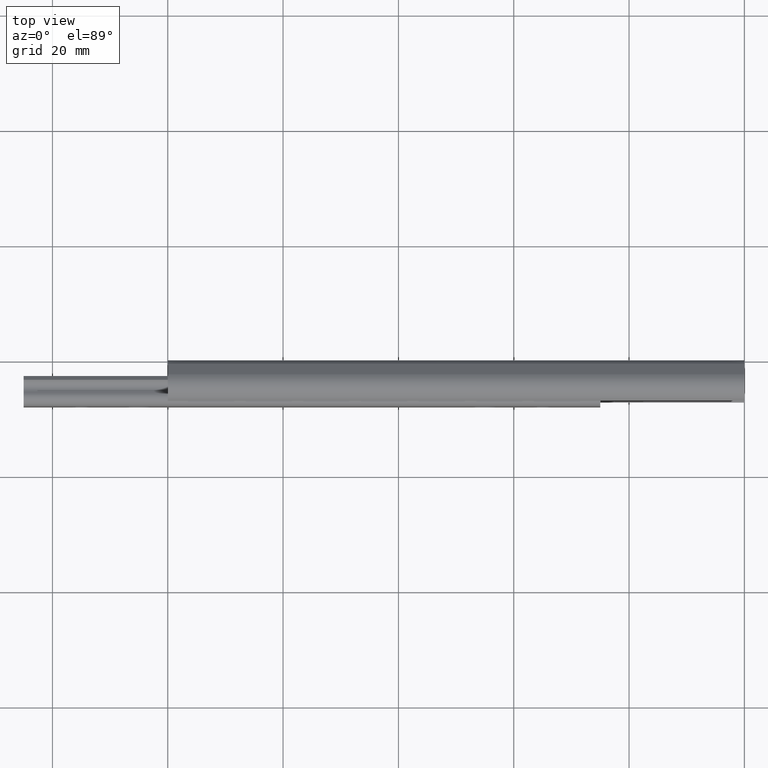
[diagram: clean part render]
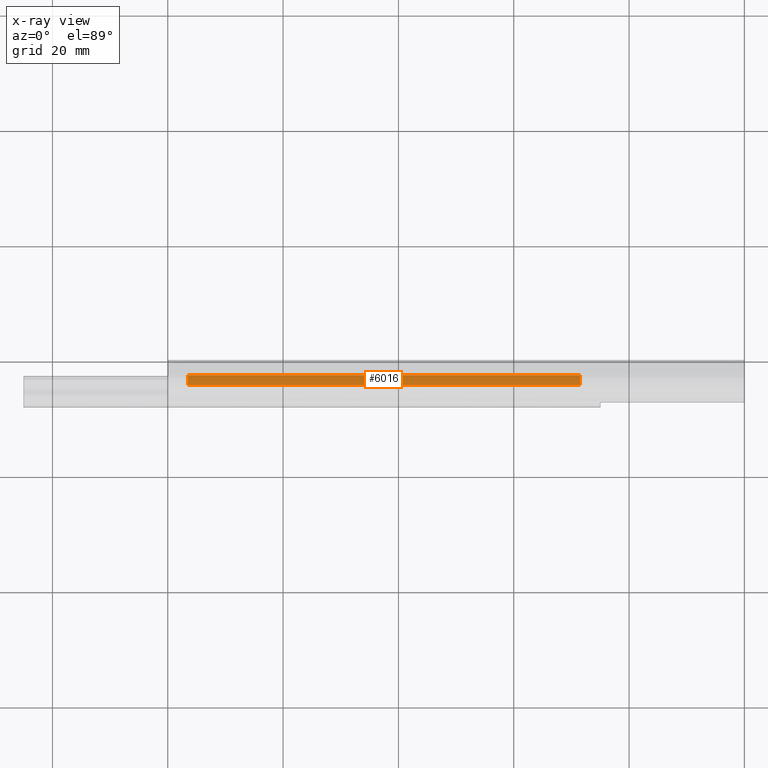
[diagram: x-ray — body ghosted, one internal face saturated and labeled with its STEP entity id]
A machine part, top view, then the same camera in x-ray: the body is ghosted and one INTERNAL B-rep face — a face not visible from any outside direction — is saturated and labeled: STEP entity #6016.
In plain terms, the highlighted face is a freeform B-spline surface patch.
Its self-contained STEP definition (entity closure, byte-faithful):
#5587=CARTESIAN_POINT('',(8.200000000000001,-2.399999999999920,-4.483141138549110));
#5588=VERTEX_POINT('',#5587);
#5594=CARTESIAN_POINT('',(8.200000000000001,-4.169784154915675,-3.844214388932865));
#5595=VERTEX_POINT('',#5594);
#5596=CARTESIAN_POINT('',(8.200000000000001,-2.399999999999920,-4.483141138549110));
#5597=CARTESIAN_POINT('',(8.200000000000001,-4.169784154915675,-3.844214388932865));
#5598=QUASI_UNIFORM_CURVE('',1,(#5596,#5597),.UNSPECIFIED.,.F.,.U.);
#5599=EDGE_CURVE('',#5588,#5595,#5598,.T.);
#5703=CARTESIAN_POINT('',(76.200000000000003,-4.169784154915675,-3.844214388932865));
#5704=VERTEX_POINT('',#5703);
#5718=CARTESIAN_POINT('',(76.200000000000003,-2.399999999999920,-4.483141138549110));
#5719=VERTEX_POINT('',#5718);
#5720=CARTESIAN_POINT('',(76.200000000000003,-2.399999999999920,-4.483141138549110));
#5721=CARTESIAN_POINT('',(76.200000000000003,-4.169784154915675,-3.844214388932865));
#5722=QUASI_UNIFORM_CURVE('',1,(#5720,#5721),.UNSPECIFIED.,.F.,.U.);
#5723=EDGE_CURVE('',#5719,#5704,#5722,.T.);
#5991=CARTESIAN_POINT('',(76.200000000000003,-4.169784154915675,-3.844214388932865));
#5992=CARTESIAN_POINT('',(8.200000000000001,-4.169784154915675,-3.844214388932865));
#5993=QUASI_UNIFORM_CURVE('',1,(#5991,#5992),.UNSPECIFIED.,.F.,.U.);
#5994=EDGE_CURVE('',#5704,#5595,#5993,.T.);
#6001=CARTESIAN_POINT('',(4.803399736405621,-4.258184780633283,-3.812300031299530));
#6002=CARTESIAN_POINT('',(4.803399736405621,-2.311599374282313,-4.515055496182447));
#6003=CARTESIAN_POINT('',(79.596596615790162,-4.258184780633283,-3.812300031299530));
#6004=CARTESIAN_POINT('',(79.596596615790162,-2.311599374282313,-4.515055496182447));
#6005=B_SPLINE_SURFACE_WITH_KNOTS('',1,1,((#6001,#6003),(#6002,#6004)),.UNSPECIFIED.,.F.,.F.,.U.,(2,2),(2,2),(0.0,2.069555504846724),(0.0,74.793196879384539),.UNSPECIFIED.);
#6006=ORIENTED_EDGE('',*,*,#5599,.F.);
#6007=CARTESIAN_POINT('',(76.200000000000003,-2.399999999999920,-4.483141138549110));
#6008=CARTESIAN_POINT('',(8.200000000000001,-2.399999999999920,-4.483141138549110));
#6009=QUASI_UNIFORM_CURVE('',1,(#6007,#6008),.UNSPECIFIED.,.F.,.U.);
#6010=EDGE_CURVE('',#5719,#5588,#6009,.T.);
#6011=ORIENTED_EDGE('',*,*,#6010,.F.);
#6012=ORIENTED_EDGE('',*,*,#5723,.T.);
#6013=ORIENTED_EDGE('',*,*,#5994,.T.);
#6014=EDGE_LOOP('',(#6006,#6011,#6012,#6013));
#6015=FACE_OUTER_BOUND('',#6014,.T.);
#6016=ADVANCED_FACE('',(#6015),#6005,.T.);